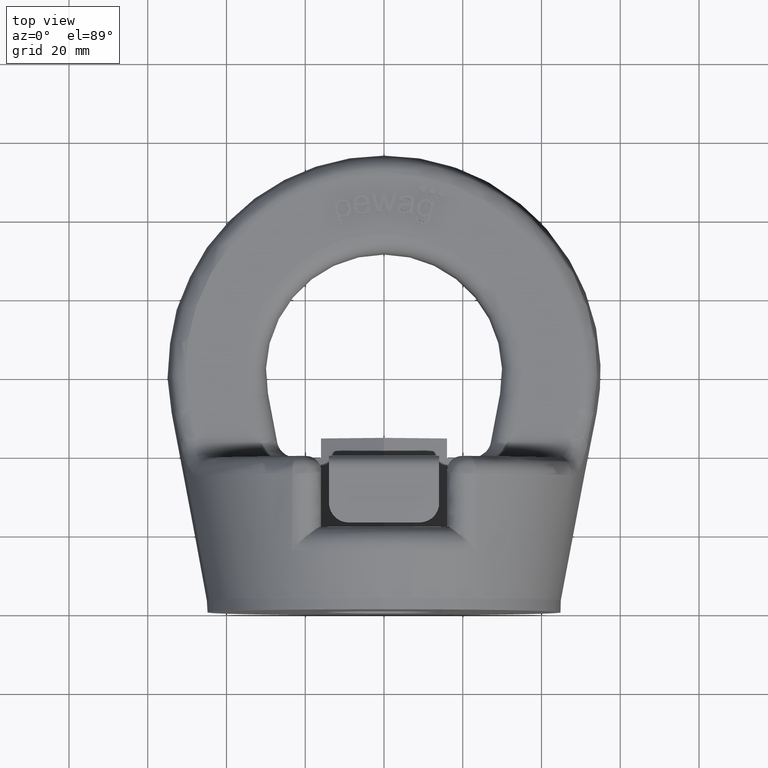
[diagram: clean part render]
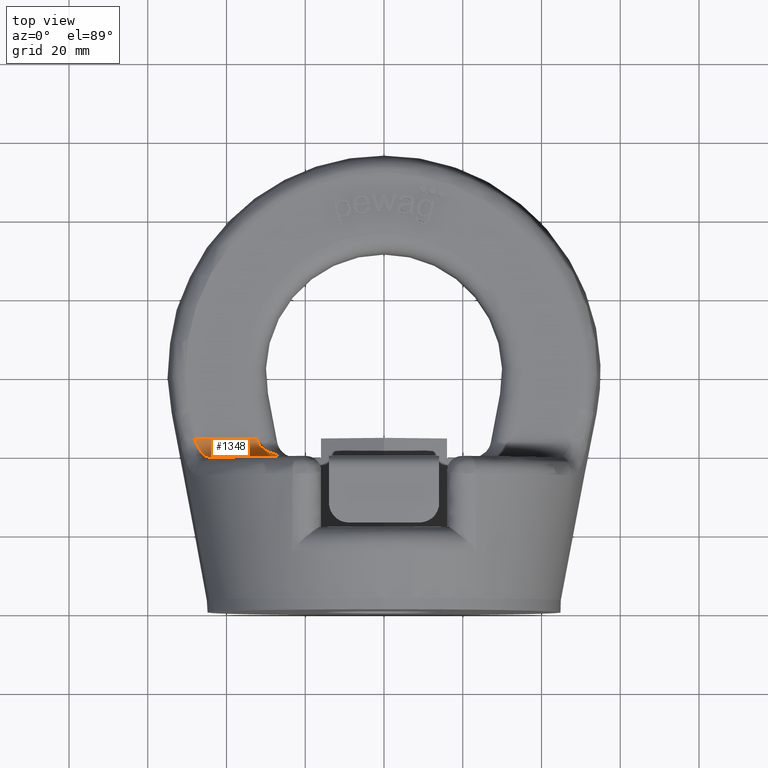
[diagram: same view with one face highlighted and labeled with its STEP entity id]
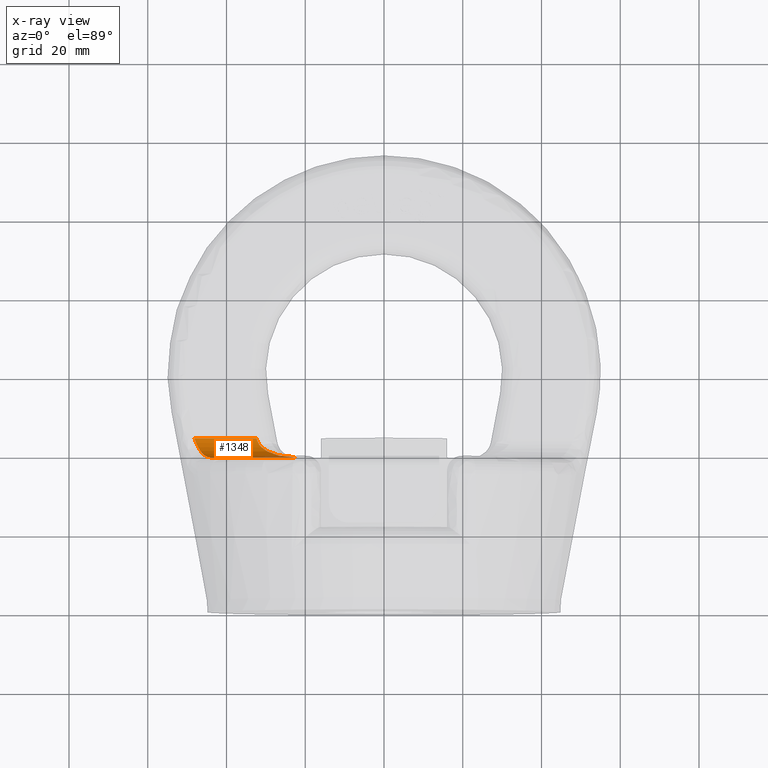
[diagram: x-ray of the same camera — body ghosted, the highlighted face saturated]
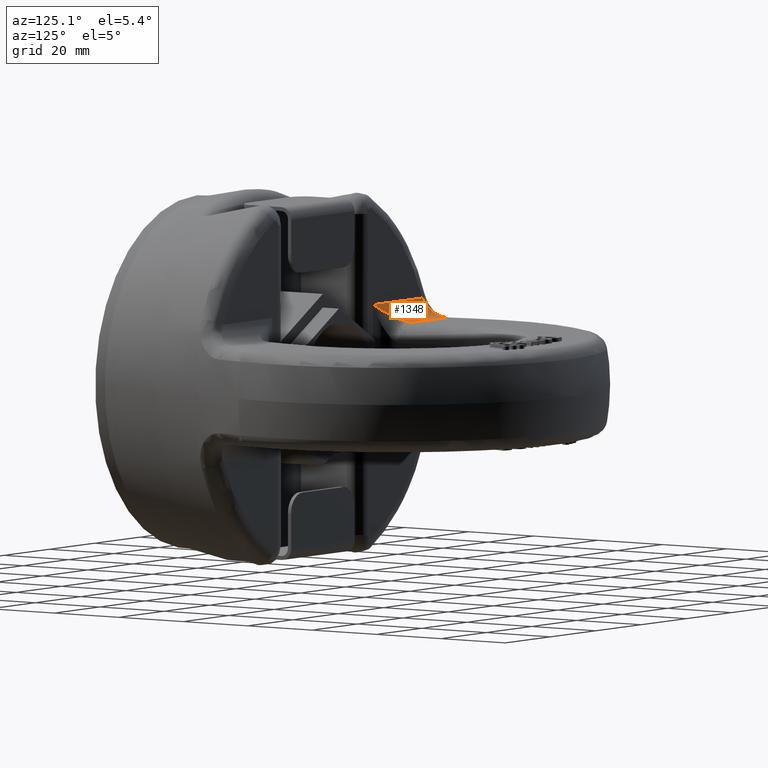
[diagram: same view with one face highlighted and labeled with its STEP entity id]
A machine part, top view. The second image highlights one B-rep face of the part: STEP entity #1348.
The next image is the same camera in x-ray: the body ghosted, the highlighted face saturated — about 3% of this face is hidden behind the body in this view.
A second angle (auxiliary view) of the same face is appended — the face is thin or edge-on in the first view.
In plain terms, the highlighted cylindrical surface (edge-blend (fillet) strip) has radius 5 mm, axis along (-1, 0, 0).
Its self-contained STEP definition (entity closure, byte-faithful):
#1058=ELLIPSE('',#5160,11.1803398874989,5.);
#1059=ELLIPSE('',#5161,5.34615458848261,5.);
#1073=CYLINDRICAL_SURFACE('',#5162,5.);
#1123=FACE_OUTER_BOUND('',#1867,.T.);
#1348=ADVANCED_FACE('',(#1123),#1073,.F.);
#1867=EDGE_LOOP('',(#2899,#2900,#2901,#2902,#2903));
#2122=LINE('',#6418,#2392);
#2150=LINE('',#6748,#2420);
#2392=VECTOR('',#5405,1.);
#2420=VECTOR('',#5483,1.);
#2899=ORIENTED_EDGE('',*,*,#4363,.F.);
#2900=ORIENTED_EDGE('',*,*,#4413,.T.);
#2901=ORIENTED_EDGE('',*,*,#4414,.T.);
#2902=ORIENTED_EDGE('',*,*,#4292,.F.);
#2903=ORIENTED_EDGE('',*,*,#4415,.T.);
#3908=VERTEX_POINT('',#6417);
#3909=VERTEX_POINT('',#6419);
#3975=VERTEX_POINT('',#6747);
#3976=VERTEX_POINT('',#6749);
#4007=VERTEX_POINT('',#6944);
#4292=EDGE_CURVE('',#3908,#3909,#2122,.T.);
#4363=EDGE_CURVE('',#3975,#3976,#2150,.T.);
#4413=EDGE_CURVE('',#3975,#4007,#1058,.T.);
#4414=EDGE_CURVE('',#4007,#3909,#1059,.T.);
#4415=EDGE_CURVE('',#3908,#3976,#4888,.T.);
#4888=B_SPLINE_CURVE_WITH_KNOTS('',3,(#6946,#6947,#6948,#6949,#6950,#6951),
 .UNSPECIFIED.,.F.,.F.,(4,2,4),(0.,0.5,1.),.UNSPECIFIED.);
#5160=AXIS2_PLACEMENT_3D('',#6943,#5570,#5571);
#5161=AXIS2_PLACEMENT_3D('',#6945,#5572,#5573);
#5162=AXIS2_PLACEMENT_3D('',#6952,#5574,#5575);
#5405=DIRECTION('',(1.,0.,0.));
#5483=DIRECTION('',(-1.,0.,0.));
#5570=DIRECTION('',(0.447213595499958,0.,-0.894427190999916));
#5571=DIRECTION('',(-0.894427190999916,0.,-0.447213595499958));
#5572=DIRECTION('',(0.935251668698779,0.353983497067518,0.));
#5573=DIRECTION('',(-0.353983497067518,0.935251668698779,0.));
#5574=DIRECTION('',(-1.,0.,0.));
#5575=DIRECTION('',(0.,0.,1.));
#6417=CARTESIAN_POINT('',(-48.153967027421,44.,12.5));
#6418=CARTESIAN_POINT('',(57.,44.,12.5));
#6419=CARTESIAN_POINT('',(-32.4040605351248,44.,12.5));
#6747=CARTESIAN_POINT('',(-22.2265672836431,39.,17.5));
#6748=CARTESIAN_POINT('',(-26.3690886608366,39.,17.5));
#6749=CARTESIAN_POINT('',(-43.9291687442477,39.,17.5));
#6943=CARTESIAN_POINT('',(-22.2265672836431,44.,17.5));
#6944=CARTESIAN_POINT('',(-32.0521694755623,43.0702767123825,12.5871989040404));
#6945=CARTESIAN_POINT('',(-32.4040605351248,44.,17.5));
#6946=CARTESIAN_POINT('',(-48.153967027421,44.,12.5));
#6947=CARTESIAN_POINT('',(-47.6738938836834,42.5737657190117,12.5));
#6948=CARTESIAN_POINT('',(-47.0465100605242,41.2514958654829,13.1250124312276));
#6949=CARTESIAN_POINT('',(-45.6138146886934,39.4669109738833,15.0209084152311));
#6950=CARTESIAN_POINT('',(-44.787592298057,39.,16.2686585094098));
#6951=CARTESIAN_POINT('',(-43.9291687442477,39.,17.5));
#6952=CARTESIAN_POINT('',(-26.3690886608366,44.,17.5));